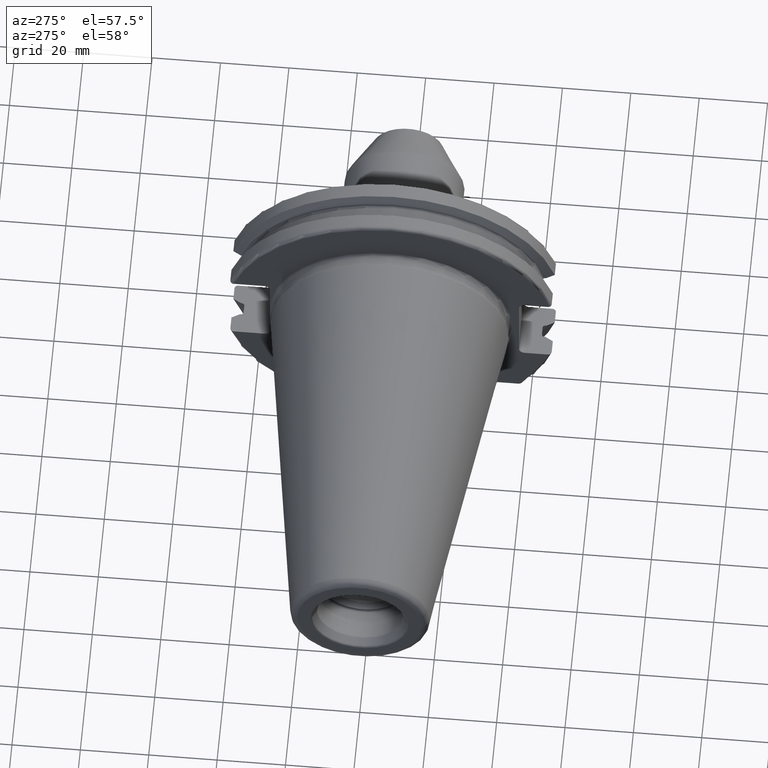
[diagram: clean part render]
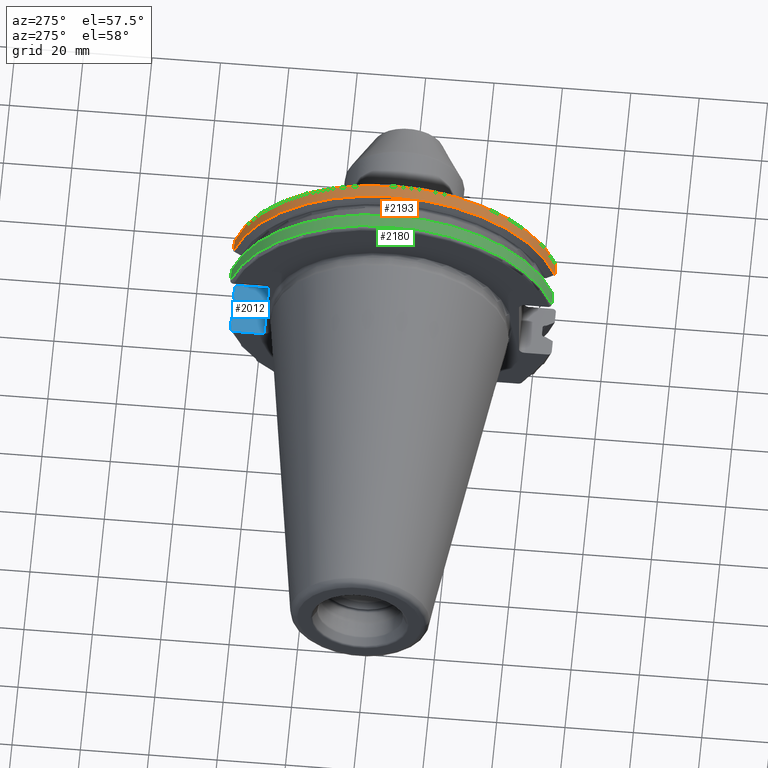
[diagram: same view with three faces highlighted in distinct colors, each labeled with its STEP entity id]
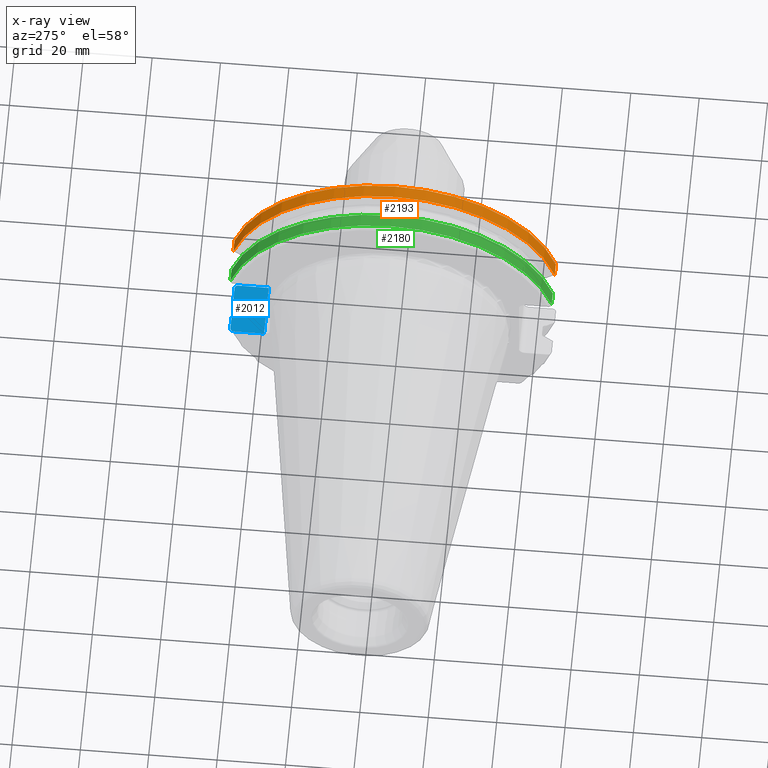
[diagram: x-ray of the same camera — body ghosted, the three highlighted faces saturated]
A machine part, auxiliary view with three faces highlighted in distinct colors.
The next image is the same camera in x-ray (body ghosted, the three faces saturated) — at least one of them is partly hidden behind the body in this view.
Their STEP definitions:

[orange] entity #2193 — the highlighted cylindrical surface (partial cylindrical patch) has radius 48.7375 mm, axis along (1, 0, 0).
#407=DIRECTION('',(1.E0,0.E0,0.E0));
#408=VECTOR('',#407,3.634621614173E0);
#409=CARTESIAN_POINT('',(1.441537838583E1,4.699929686974E1,1.29E1));
#410=LINE('',#409,#408);
#411=CARTESIAN_POINT('',(1.805E1,0.E0,0.E0));
#412=DIRECTION('',(1.E0,0.E0,0.E0));
#413=DIRECTION('',(0.E0,9.643354064066E-1,2.646832521159E-1));
#414=AXIS2_PLACEMENT_3D('',#411,#412,#413);
#416=DIRECTION('',(1.E0,0.E0,0.E0));
#417=VECTOR('',#416,3.634621614173E0);
#418=CARTESIAN_POINT('',(1.441537838583E1,-4.699929686974E1,1.29E1));
#419=LINE('',#418,#417);
#420=CARTESIAN_POINT('',(1.441537838583E1,0.E0,0.E0));
#421=DIRECTION('',(1.E0,0.E0,0.E0));
#422=DIRECTION('',(0.E0,9.643354064066E-1,2.646832521159E-1));
#423=AXIS2_PLACEMENT_3D('',#420,#421,#422);
#584=CARTESIAN_POINT('',(1.441537838583E1,4.699929686974E1,1.29E1));
#596=CARTESIAN_POINT('',(1.441537838583E1,-4.699929686974E1,1.29E1));
#1496=VERTEX_POINT('',#584);
#1497=VERTEX_POINT('',#596);
#1512=CARTESIAN_POINT('',(1.805E1,4.699929686974E1,1.29E1));
#1513=VERTEX_POINT('',#1512);
#1516=CARTESIAN_POINT('',(1.805E1,-4.699929686974E1,1.29E1));
#1517=VERTEX_POINT('',#1516);
#2181=CARTESIAN_POINT('',(-1.076325E2,0.E0,0.E0));
#2182=DIRECTION('',(1.E0,0.E0,0.E0));
#2183=DIRECTION('',(0.E0,-1.E0,0.E0));
#2184=AXIS2_PLACEMENT_3D('',#2181,#2182,#2183);
#2185=CYLINDRICAL_SURFACE('',#2184,4.87375E1);
#2186=ORIENTED_EDGE('',*,*,#2132,.T.);
#2187=ORIENTED_EDGE('',*,*,#2163,.T.);
#2188=ORIENTED_EDGE('',*,*,#2089,.F.);
#2190=ORIENTED_EDGE('',*,*,#2189,.F.);
#2191=EDGE_LOOP('',(#2186,#2187,#2188,#2190));
#2192=FACE_OUTER_BOUND('',#2191,.F.);
#2193=ADVANCED_FACE('',(#2192),#2185,.T.);
#415=CIRCLE('',#414,4.87375E1);
#424=CIRCLE('',#423,4.87375E1);
#2089=EDGE_CURVE('',#1497,#1517,#419,.T.);
#2132=EDGE_CURVE('',#1496,#1513,#410,.T.);
#2163=EDGE_CURVE('',#1513,#1517,#415,.T.);
#2189=EDGE_CURVE('',#1496,#1497,#424,.T.);

[blue] entity #2012 — the highlighted planar face has unit normal (0, 0, -1).
#156=DIRECTION('',(0.E0,-1.E0,0.E0));
#157=VECTOR('',#156,8.911493733886E0);
#158=CARTESIAN_POINT('',(1.905E1,4.596149373389E1,-1.29E1));
#159=LINE('',#158,#157);
#204=CARTESIAN_POINT('',(1.805E1,4.699929686974E1,-1.29E1));
#205=CARTESIAN_POINT('',(1.812676342368E1,4.699929686974E1,-1.29E1));
#206=CARTESIAN_POINT('',(1.827575329770E1,4.698147245914E1,-1.29E1));
#207=CARTESIAN_POINT('',(1.849056832427E1,4.690313408822E1,-1.29E1));
#208=CARTESIAN_POINT('',(1.868190698842E1,4.677722381974E1,-1.29E1));
#209=CARTESIAN_POINT('',(1.884050497536E1,4.661134760606E1,-1.29E1));
#210=CARTESIAN_POINT('',(1.895953365851E1,4.641358752589E1,-1.29E1));
#211=CARTESIAN_POINT('',(1.903320906929E1,4.619315655817E1,-1.29E1));
#212=CARTESIAN_POINT('',(1.905E1,4.604021961607E1,-1.29E1));
#213=CARTESIAN_POINT('',(1.905E1,4.596149373389E1,-1.29E1));
#257=DIRECTION('',(-1.E0,0.E0,0.E0));
#258=VECTOR('',#257,1.585E1);
#259=CARTESIAN_POINT('',(1.905E1,3.705E1,-1.29E1));
#260=LINE('',#259,#258);
#301=DIRECTION('',(0.E0,-1.E0,0.E0));
#302=VECTOR('',#301,8.911493733886E0);
#303=CARTESIAN_POINT('',(3.2E0,4.596149373389E1,-1.29E1));
#304=LINE('',#303,#302);
#452=DIRECTION('',(0.E0,-1.E0,2.729156701685E-14));
#453=VECTOR('',#452,1.952643655423E-1);
#454=CARTESIAN_POINT('',(9.2625E0,4.460981716077E1,-1.29E1));
#455=LINE('',#454,#453);
#558=DIRECTION('',(0.E0,-1.E0,0.E0));
#559=VECTOR('',#558,1.952643655423E-1);
#560=CARTESIAN_POINT('',(1.30875E1,4.460981716077E1,-1.29E1));
#561=LINE('',#560,#559);
#603=CARTESIAN_POINT('',(1.23375E1,4.363301502303E1,-1.29E1));
#604=CARTESIAN_POINT('',(1.239557783586E1,4.363301502303E1,-1.29E1));
#605=CARTESIAN_POINT('',(1.250820906846E1,4.364665007470E1,-1.29E1));
#606=CARTESIAN_POINT('',(1.267093813797E1,4.370694986561E1,-1.29E1));
#607=CARTESIAN_POINT('',(1.281439563225E1,4.380294947330E1,-1.29E1));
#608=CARTESIAN_POINT('',(1.293252862153E1,4.392839993682E1,-1.29E1));
#609=CARTESIAN_POINT('',(1.302050347613E1,4.407653953968E1,-1.29E1));
#610=CARTESIAN_POINT('',(1.307501400290E1,4.424119768686E1,-1.29E1));
#611=CARTESIAN_POINT('',(1.30875E1,4.435563691943E1,-1.29E1));
#612=CARTESIAN_POINT('',(1.30875E1,4.441455279523E1,-1.29E1));
#657=DIRECTION('',(1.E0,0.E0,0.E0));
#658=VECTOR('',#657,2.325E0);
#659=CARTESIAN_POINT('',(1.00125E1,4.363301502303E1,-1.29E1));
#660=LINE('',#659,#658);
#683=CARTESIAN_POINT('',(9.2625E0,4.441455279523E1,-1.29E1));
#684=CARTESIAN_POINT('',(9.2625E0,4.435555884443E1,-1.29E1));
#685=CARTESIAN_POINT('',(9.275014162185E0,4.424097575422E1,-1.29E1));
#686=CARTESIAN_POINT('',(9.329696831815E0,4.407605680232E1,-1.29E1));
#687=CARTESIAN_POINT('',(9.417872182230E0,4.392785719897E1,-1.29E1));
#688=CARTESIAN_POINT('',(9.536145437868E0,4.380249220706E1,-1.29E1));
#689=CARTESIAN_POINT('',(9.679609056136E0,4.370669047421E1,-1.29E1));
#690=CARTESIAN_POINT('',(9.842068775406E0,4.364660851031E1,-1.29E1));
#691=CARTESIAN_POINT('',(9.954524536379E0,4.363301502303E1,-1.29E1));
#692=CARTESIAN_POINT('',(1.00125E1,4.363301502303E1,-1.29E1));
#755=CARTESIAN_POINT('',(3.2E0,4.596149373389E1,-1.29E1));
#756=CARTESIAN_POINT('',(3.2E0,4.604026443227E1,-1.29E1));
#757=CARTESIAN_POINT('',(3.216813255287E0,4.619328239852E1,-1.29E1));
#758=CARTESIAN_POINT('',(3.290538328370E0,4.641376542139E1,-1.29E1));
#759=CARTESIAN_POINT('',(3.409705660893E0,4.661163928454E1,-1.29E1));
#760=CARTESIAN_POINT('',(3.568375595419E0,4.677744698912E1,-1.29E1));
#761=CARTESIAN_POINT('',(3.759602935675E0,4.690321007119E1,-1.29E1));
#762=CARTESIAN_POINT('',(3.974378910530E0,4.698149887214E1,-1.29E1));
#763=CARTESIAN_POINT('',(4.123284460641E0,4.699929686974E1,-1.29E1));
#764=CARTESIAN_POINT('',(4.2E0,4.699929686974E1,-1.29E1));
#808=DIRECTION('',(1.E0,0.E0,0.E0));
#809=VECTOR('',#808,3.734621614173E0);
#810=CARTESIAN_POINT('',(4.2E0,4.699929686974E1,-1.29E1));
#811=LINE('',#810,#809);
#821=DIRECTION('',(1.E0,0.E0,0.E0));
#822=VECTOR('',#821,3.634621614173E0);
#823=CARTESIAN_POINT('',(1.441537838583E1,4.699929686974E1,-1.29E1));
#824=LINE('',#823,#822);
#870=CARTESIAN_POINT('',(9.2625E0,4.460981716077E1,-1.29E1));
#871=CARTESIAN_POINT('',(9.118283773553E0,4.486984125009E1,-1.29E1));
#872=CARTESIAN_POINT('',(8.827633549554E0,4.539353719098E1,-1.29E1));
#873=CARTESIAN_POINT('',(8.385043355543E0,4.618996220278E1,-1.29E1));
#874=CARTESIAN_POINT('',(8.085504386120E0,4.672829507383E1,-1.29E1));
#875=CARTESIAN_POINT('',(7.934621614173E0,4.699929686974E1,-1.29E1));
#898=CARTESIAN_POINT('',(1.30875E1,4.460981716077E1,-1.29E1));
#899=CARTESIAN_POINT('',(1.323171622645E1,4.486984125009E1,-1.29E1));
#900=CARTESIAN_POINT('',(1.352236645045E1,4.539353719098E1,-1.29E1));
#901=CARTESIAN_POINT('',(1.396495664446E1,4.618996220278E1,-1.29E1));
#902=CARTESIAN_POINT('',(1.426449561388E1,4.672829507383E1,-1.29E1));
#903=CARTESIAN_POINT('',(1.441537838583E1,4.699929686974E1,-1.29E1));
#1464=CARTESIAN_POINT('',(9.2625E0,4.460981716077E1,-1.29E1));
#1465=CARTESIAN_POINT('',(9.2625E0,4.441455279523E1,-1.29E1));
#1466=VERTEX_POINT('',#1464);
#1467=VERTEX_POINT('',#1465);
#1486=CARTESIAN_POINT('',(1.30875E1,4.460981716077E1,-1.29E1));
#1487=CARTESIAN_POINT('',(1.30875E1,4.441455279523E1,-1.29E1));
#1488=VERTEX_POINT('',#1486);
#1489=VERTEX_POINT('',#1487);
#1500=VERTEX_POINT('',#692);
#1502=CARTESIAN_POINT('',(1.23375E1,4.363301502303E1,-1.29E1));
#1503=VERTEX_POINT('',#1502);
#1506=VERTEX_POINT('',#903);
#1508=VERTEX_POINT('',#875);
#1518=CARTESIAN_POINT('',(4.2E0,4.699929686974E1,-1.29E1));
#1519=VERTEX_POINT('',#1518);
#1520=CARTESIAN_POINT('',(1.805E1,4.699929686974E1,-1.29E1));
#1521=VERTEX_POINT('',#1520);
#1533=VERTEX_POINT('',#213);
#1535=VERTEX_POINT('',#755);
#1585=CARTESIAN_POINT('',(1.905E1,3.705E1,-1.29E1));
#1586=CARTESIAN_POINT('',(3.2E0,3.705E1,-1.29E1));
#1587=VERTEX_POINT('',#1585);
#1588=VERTEX_POINT('',#1586);
#1979=CARTESIAN_POINT('',(1.905E1,3.53E1,-1.29E1));
#1980=DIRECTION('',(0.E0,0.E0,-1.E0));
#1981=DIRECTION('',(0.E0,1.E0,0.E0));
#1982=AXIS2_PLACEMENT_3D('',#1979,#1980,#1981);
#1983=PLANE('',#1982);
#1985=ORIENTED_EDGE('',*,*,#1984,.T.);
#1987=ORIENTED_EDGE('',*,*,#1986,.F.);
#1989=ORIENTED_EDGE('',*,*,#1988,.T.);
#1991=ORIENTED_EDGE('',*,*,#1990,.T.);
#1993=ORIENTED_EDGE('',*,*,#1992,.F.);
#1995=ORIENTED_EDGE('',*,*,#1994,.T.);
#1997=ORIENTED_EDGE('',*,*,#1996,.T.);
#1999=ORIENTED_EDGE('',*,*,#1998,.T.);
#2001=ORIENTED_EDGE('',*,*,#2000,.T.);
#2003=ORIENTED_EDGE('',*,*,#2002,.F.);
#2005=ORIENTED_EDGE('',*,*,#2004,.T.);
#2007=ORIENTED_EDGE('',*,*,#2006,.T.);
#2008=ORIENTED_EDGE('',*,*,#1955,.T.);
#2009=ORIENTED_EDGE('',*,*,#1862,.T.);
#2010=EDGE_LOOP('',(#1985,#1987,#1989,#1991,#1993,#1995,#1997,#1999,#2001,#2003,
#2005,#2007,#2008,#2009));
#2011=FACE_OUTER_BOUND('',#2010,.F.);
#2012=ADVANCED_FACE('',(#2011),#1983,.F.);
#214=B_SPLINE_CURVE_WITH_KNOTS('',3,(#204,#205,#206,#207,#208,#209,#210,#211,
#212,#213),.UNSPECIFIED.,.F.,.F.,(4,1,1,1,1,1,1,4),(0.E0,1.428571428571E-1,
2.857142857143E-1,4.285714285714E-1,5.714285714286E-1,7.142857142857E-1,
8.571428571429E-1,1.E0),.UNSPECIFIED.);
#613=B_SPLINE_CURVE_WITH_KNOTS('',3,(#603,#604,#605,#606,#607,#608,#609,#610,
#611,#612),.UNSPECIFIED.,.F.,.F.,(4,1,1,1,1,1,1,4),(0.E0,1.428571428571E-1,
2.857142857143E-1,4.285714285714E-1,5.714285714286E-1,7.142857142857E-1,
8.571428571429E-1,1.E0),.UNSPECIFIED.);
#693=B_SPLINE_CURVE_WITH_KNOTS('',3,(#683,#684,#685,#686,#687,#688,#689,#690,
#691,#692),.UNSPECIFIED.,.F.,.F.,(4,1,1,1,1,1,1,4),(0.E0,1.428571428571E-1,
2.857142857143E-1,4.285714285714E-1,5.714285714286E-1,7.142857142857E-1,
8.571428571429E-1,1.E0),.UNSPECIFIED.);
#765=B_SPLINE_CURVE_WITH_KNOTS('',3,(#755,#756,#757,#758,#759,#760,#761,#762,
#763,#764),.UNSPECIFIED.,.F.,.F.,(4,1,1,1,1,1,1,4),(0.E0,1.428571428571E-1,
2.857142857143E-1,4.285714285714E-1,5.714285714286E-1,7.142857142857E-1,
8.571428571429E-1,1.E0),.UNSPECIFIED.);
#876=B_SPLINE_CURVE_WITH_KNOTS('',3,(#870,#871,#872,#873,#874,#875),
.UNSPECIFIED.,.F.,.F.,(4,1,1,4),(0.E0,3.333333333333E-1,6.666666666667E-1,1.E0),
.UNSPECIFIED.);
#904=B_SPLINE_CURVE_WITH_KNOTS('',3,(#898,#899,#900,#901,#902,#903),
.UNSPECIFIED.,.F.,.F.,(4,1,1,4),(0.E0,3.333333333333E-1,6.666666666667E-1,1.E0),
.UNSPECIFIED.);
#1862=EDGE_CURVE('',#1533,#1587,#159,.T.);
#1955=EDGE_CURVE('',#1521,#1533,#214,.T.);
#1984=EDGE_CURVE('',#1587,#1588,#260,.T.);
#1986=EDGE_CURVE('',#1535,#1588,#304,.T.);
#1988=EDGE_CURVE('',#1535,#1519,#765,.T.);
#1990=EDGE_CURVE('',#1519,#1508,#811,.T.);
#1992=EDGE_CURVE('',#1466,#1508,#876,.T.);
#1994=EDGE_CURVE('',#1466,#1467,#455,.T.);
#1996=EDGE_CURVE('',#1467,#1500,#693,.T.);
#1998=EDGE_CURVE('',#1500,#1503,#660,.T.);
#2000=EDGE_CURVE('',#1503,#1489,#613,.T.);
#2002=EDGE_CURVE('',#1488,#1489,#561,.T.);
#2004=EDGE_CURVE('',#1488,#1506,#904,.T.);
#2006=EDGE_CURVE('',#1506,#1521,#824,.T.);

[green] entity #2180 — the highlighted cylindrical surface (partial cylindrical patch) has radius 48.7375 mm, axis along (1, 0, 0).
#347=CARTESIAN_POINT('',(4.2E0,0.E0,0.E0));
#348=DIRECTION('',(1.E0,0.E0,0.E0));
#349=DIRECTION('',(0.E0,9.643354064066E-1,2.646832521159E-1));
#350=AXIS2_PLACEMENT_3D('',#347,#348,#349);
#394=DIRECTION('',(1.E0,0.E0,0.E0));
#395=VECTOR('',#394,3.734621614173E0);
#396=CARTESIAN_POINT('',(4.2E0,4.699929686974E1,1.29E1));
#397=LINE('',#396,#395);
#398=CARTESIAN_POINT('',(7.934621614173E0,0.E0,0.E0));
#399=DIRECTION('',(1.E0,0.E0,0.E0));
#400=DIRECTION('',(0.E0,9.643354064066E-1,2.646832521159E-1));
#401=AXIS2_PLACEMENT_3D('',#398,#399,#400);
#403=DIRECTION('',(1.E0,0.E0,0.E0));
#404=VECTOR('',#403,3.734621614173E0);
#405=CARTESIAN_POINT('',(4.2E0,-4.699929686974E1,1.29E1));
#406=LINE('',#405,#404);
#425=CARTESIAN_POINT('',(7.934621614173E0,4.699929686974E1,1.29E1));
#437=CARTESIAN_POINT('',(7.934621614173E0,-4.699929686974E1,1.29E1));
#1498=VERTEX_POINT('',#425);
#1499=VERTEX_POINT('',#437);
#1510=CARTESIAN_POINT('',(4.2E0,4.699929686974E1,1.29E1));
#1511=VERTEX_POINT('',#1510);
#1514=CARTESIAN_POINT('',(4.2E0,-4.699929686974E1,1.29E1));
#1515=VERTEX_POINT('',#1514);
#2168=CARTESIAN_POINT('',(-1.076325E2,0.E0,0.E0));
#2169=DIRECTION('',(1.E0,0.E0,0.E0));
#2170=DIRECTION('',(0.E0,-1.E0,0.E0));
#2171=AXIS2_PLACEMENT_3D('',#2168,#2169,#2170);
#2172=CYLINDRICAL_SURFACE('',#2171,4.87375E1);
#2173=ORIENTED_EDGE('',*,*,#2148,.T.);
#2175=ORIENTED_EDGE('',*,*,#2174,.T.);
#2176=ORIENTED_EDGE('',*,*,#2073,.F.);
#2177=ORIENTED_EDGE('',*,*,#2116,.F.);
#2178=EDGE_LOOP('',(#2173,#2175,#2176,#2177));
#2179=FACE_OUTER_BOUND('',#2178,.F.);
#2180=ADVANCED_FACE('',(#2179),#2172,.T.);
#351=CIRCLE('',#350,4.87375E1);
#402=CIRCLE('',#401,4.87375E1);
#2073=EDGE_CURVE('',#1515,#1499,#406,.T.);
#2116=EDGE_CURVE('',#1511,#1515,#351,.T.);
#2148=EDGE_CURVE('',#1511,#1498,#397,.T.);
#2174=EDGE_CURVE('',#1498,#1499,#402,.T.);